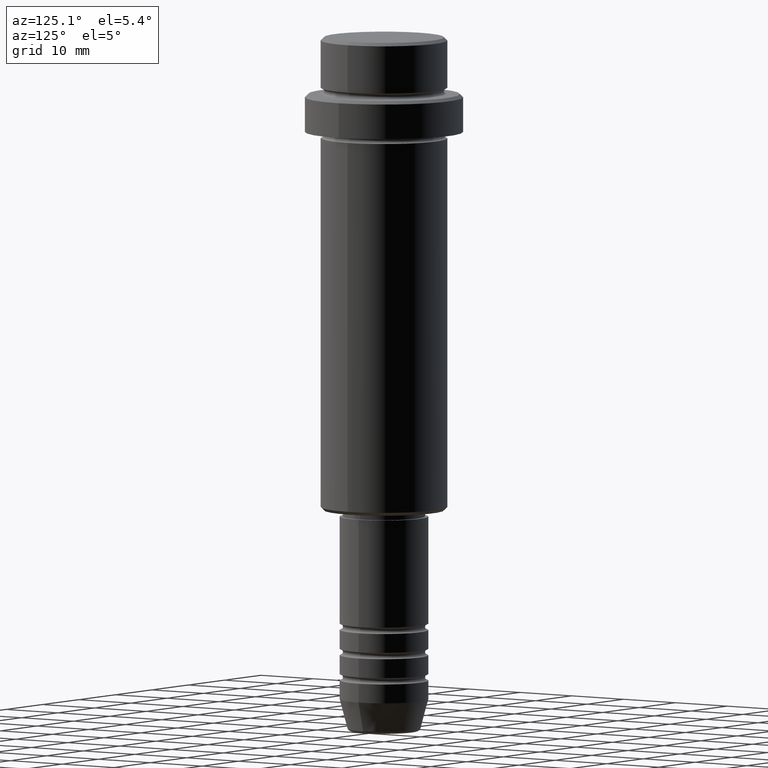
[diagram: clean part render]
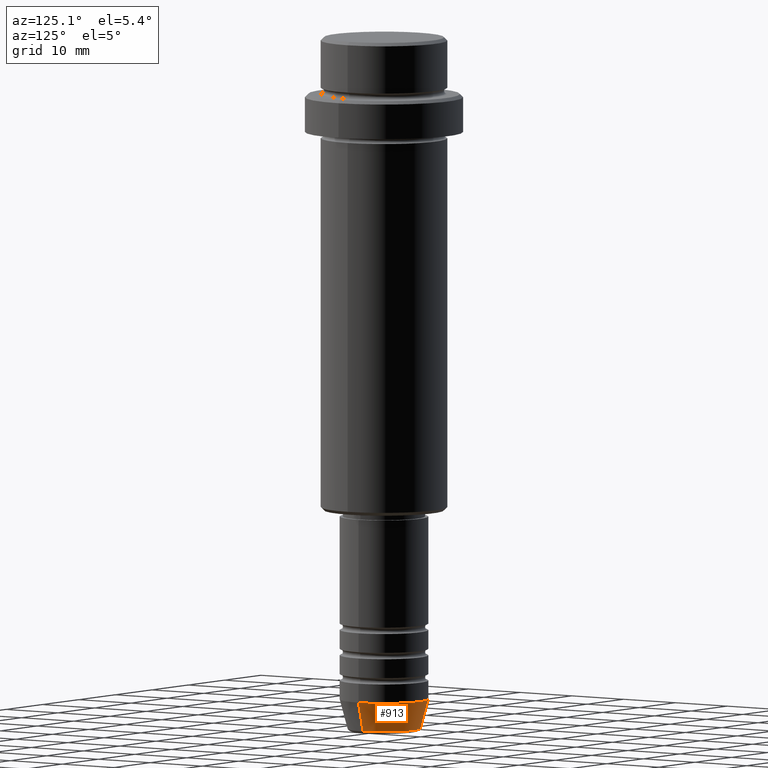
[diagram: same view with one face highlighted and labeled with its STEP entity id]
A machine part, auxiliary view. The second image highlights one B-rep face of the part: STEP entity #913.
In plain terms, the highlighted conical surface has half-angle 15 deg.
Its self-contained STEP definition (entity closure, byte-faithful):
#7 = EDGE_CURVE ( 'NONE', #835, #773, #1383, .T. ) ;
#49 = ORIENTED_EDGE ( 'NONE', *, *, #798, .T. ) ;
#68 = LINE ( 'NONE', #1284, #454 ) ;
#81 = DIRECTION ( 'NONE',  ( 0.2588190451025213501, 0.000000000000000000, 0.9659258262890680902 ) ) ;
#94 = CARTESIAN_POINT ( 'NONE',  ( 0.000000000000000000, 0.000000000000000000, -105.0000000000000142 ) ) ;
#96 = ORIENTED_EDGE ( 'NONE', *, *, #1170, .F. ) ;
#166 = VERTEX_POINT ( 'NONE', #1327 ) ;
#235 = DIRECTION ( 'NONE',  ( 1.000000000000000000, 0.000000000000000000, 0.000000000000000000 ) ) ;
#427 = VERTEX_POINT ( 'NONE', #1048 ) ;
#445 = EDGE_CURVE ( 'NONE', #166, #427, #68, .T. ) ;
#454 = VECTOR ( 'NONE', #81, 1000.000000000000000 ) ;
#456 = CIRCLE ( 'NONE', #1130, 5.759553456999433330 ) ;
#480 = CONICAL_SURFACE ( 'NONE', #1289, 7.000000000000000000, 0.2617993877991500740 ) ;
#565 = AXIS2_PLACEMENT_3D ( 'NONE', #94, #664, #1408 ) ;
#594 = EDGE_LOOP ( 'NONE', ( #49, #793, #96, #1152 ) ) ;
#649 = CARTESIAN_POINT ( 'NONE',  ( 0.000000000000000000, 0.000000000000000000, -105.0000000000000142 ) ) ;
#664 = DIRECTION ( 'NONE',  ( -0.000000000000000000, -0.000000000000000000, 1.000000000000000000 ) ) ;
#773 = VERTEX_POINT ( 'NONE', #1159 ) ;
#793 = ORIENTED_EDGE ( 'NONE', *, *, #7, .T. ) ;
#798 = EDGE_CURVE ( 'NONE', #166, #835, #456, .T. ) ;
#835 = VERTEX_POINT ( 'NONE', #1279 ) ;
#867 = VECTOR ( 'NONE', #933, 1000.000000000000000 ) ;
#913 = ADVANCED_FACE ( 'NONE', ( #1200 ), #480, .T. ) ;
#933 = DIRECTION ( 'NONE',  ( -0.2588190451025213501, 3.169619151431772337E-17, 0.9659258262890680902 ) ) ;
#953 = CARTESIAN_POINT ( 'NONE',  ( 0.000000000000000000, 0.000000000000000000, -109.6294095225512706 ) ) ;
#1048 = CARTESIAN_POINT ( 'NONE',  ( 7.000000000000000000, 0.000000000000000000, -105.0000000000000142 ) ) ;
#1092 = DIRECTION ( 'NONE',  ( -0.000000000000000000, -0.000000000000000000, 1.000000000000000000 ) ) ;
#1130 = AXIS2_PLACEMENT_3D ( 'NONE', #953, #1399, #1293 ) ;
#1152 = ORIENTED_EDGE ( 'NONE', *, *, #445, .F. ) ;
#1159 = CARTESIAN_POINT ( 'NONE',  ( -7.000000000000000000, 8.572527594031473190E-16, -105.0000000000000142 ) ) ;
#1170 = EDGE_CURVE ( 'NONE', #427, #773, #1237, .T. ) ;
#1200 = FACE_OUTER_BOUND ( 'NONE', #594, .T. ) ;
#1237 = CIRCLE ( 'NONE', #565, 7.000000000000000000 ) ;
#1259 = CARTESIAN_POINT ( 'NONE',  ( -7.000000000000000000, 8.572527594031473190E-16, -105.0000000000000142 ) ) ;
#1279 = CARTESIAN_POINT ( 'NONE',  ( -5.759553456999433330, 7.812973149831950787E-16, -109.6294095225512706 ) ) ;
#1284 = CARTESIAN_POINT ( 'NONE',  ( 7.000000000000000000, 0.000000000000000000, -105.0000000000000142 ) ) ;
#1289 = AXIS2_PLACEMENT_3D ( 'NONE', #649, #1092, #235 ) ;
#1293 = DIRECTION ( 'NONE',  ( 1.000000000000000000, 0.000000000000000000, 0.000000000000000000 ) ) ;
#1327 = CARTESIAN_POINT ( 'NONE',  ( 5.759553456999433330, 0.000000000000000000, -109.6294095225512706 ) ) ;
#1383 = LINE ( 'NONE', #1259, #867 ) ;
#1399 = DIRECTION ( 'NONE',  ( -0.000000000000000000, -0.000000000000000000, 1.000000000000000000 ) ) ;
#1408 = DIRECTION ( 'NONE',  ( 1.000000000000000000, 0.000000000000000000, 0.000000000000000000 ) ) ;